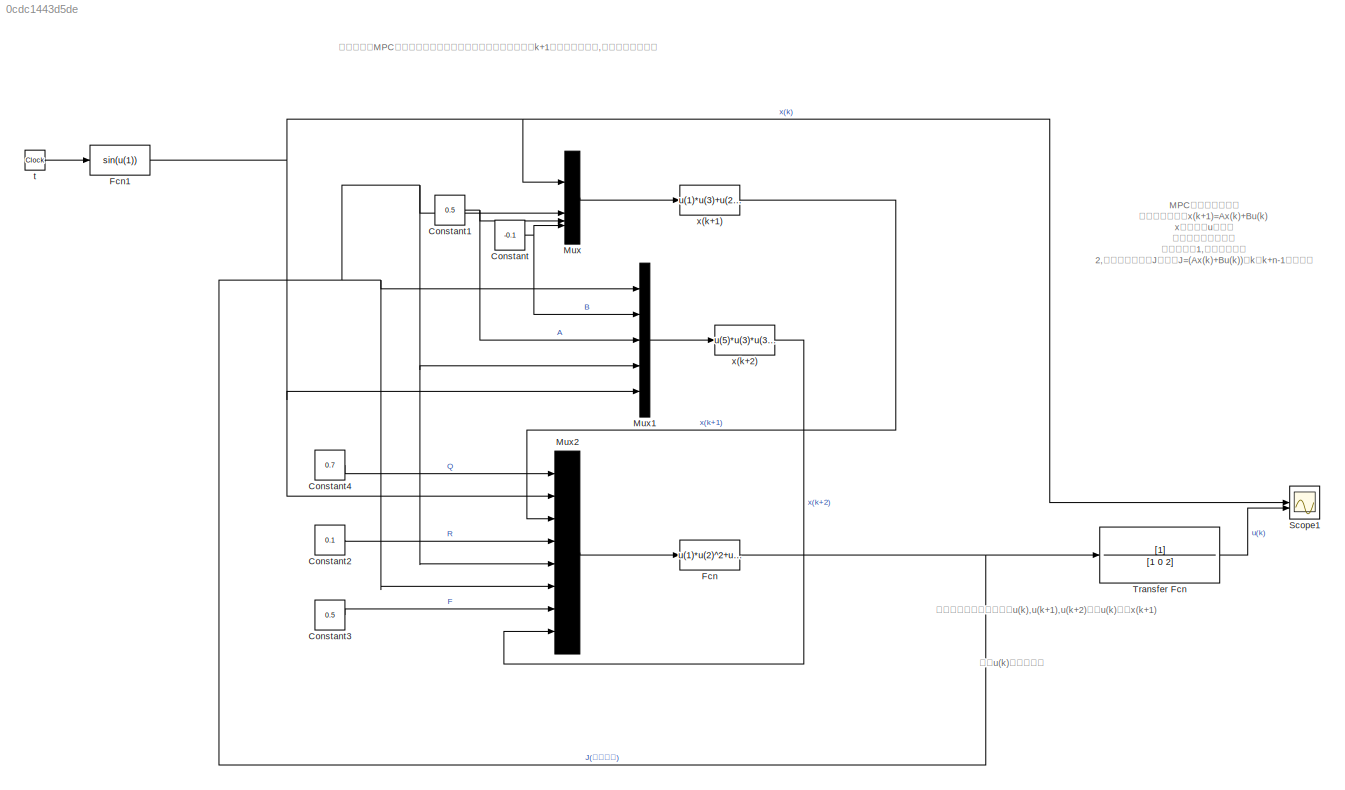
MODEL slx_0cdc1443d5de
KIND model
CONFIG AbsTol = auto
CONFIG EnableMultiTasking = off
CONFIG FixedStep = auto
CONFIG MaxStep = auto
CONFIG MinStep = auto
CONFIG RelTol = 1e-3
CONFIG SampleTimeConstraint = Unconstrained
CONFIG SolverName = VariableStepAuto
CONFIG StartTime = 0.0
CONFIG StopTime = 50
BLOCK [Constant] Constant
  Value = -0.1
BLOCK [Constant] Constant1
  Value = 0.5
BLOCK [Constant] Constant2
  Value = 0.1
BLOCK [Constant] Constant3
  Value = 0.5
BLOCK [Constant] Constant4
  Value = 0.7
BLOCK [Fcn] Fcn
  Expr = u(1)*u(2)^2+u(1)*u(3)^2+u(4)*u(5)^2+u(4)*u(6)^2+u(7)*u(8)^2
BLOCK [Fcn] Fcn1
  Expr = sin(u(1))
BLOCK [Mux] Mux
  DisplayOption = bar
BLOCK [Mux] Mux1
  DisplayOption = bar
  Inputs = 5
BLOCK [Mux] Mux2
  DisplayOption = bar
  Inputs = 8
BLOCK [Scope] Scope1
  Floating = off
  NumInputPorts = 2
  ScopeSpecificationString = Simulink.scopes.TimeScopeBlockCfg('CurrentConfiguration', extmgr.ConfigurationSet(extmgr.Configuration('Core','General UI',true),extmgr.Configuration('Core','Source UI',true),extmgr.Configuration('Sources','WiredSimulink',true,'DataLoggingVariableName','ScopeData1'),extmgr.Configuration('Visuals','Time Domain',true,'SerializedDisplays',{struct('MinYLimReal','-1.28663','MaxYLimReal','1.57998','YLab...<+1496ch>
BLOCK [TransferFcn] Transfer Fcn
  Denominator = [1 0 2]
BLOCK [Clock] t
BLOCK [Fcn] x(k+1)
  Expr = u(1)*u(3)+u(2)*u(4)
BLOCK [Fcn] x(k+2)
  Expr = u(5)*u(3)*u(3)+u(2)*u(3)*u(4)+u(2)*u(1)
ANNOTATION (root): MPC：模型预测控制 单输入离散型：x(k+1)=Ax(k)+Bu(k) x是状态，u是控制 多输入使用矩阵运算 一般过程：1,读取当前状态 2,最优化代价函数J，其中J=(Ax(k)+Bu(k))从k到k+n-1的求和。 3，只取u(k)输出控制 这个循环就是滚动优化控制
ANNOTATION (root): 废稿，利用MPC预测单输入单输出未来两步状态的模型，在向k+1的迭代处不会写,参数是随便设置的
ANNOTATION (root): 这里应当是使用函数求得u(k),u(k+1),u(k+2)并用u(k)更新x(k+1)
ANNOTATION (root): 执行u(k)要怎么写？
NET Constant1:1 -> Mux1:3, Mux:3
LINE Constant2:1 -> Mux2:4
LINE Constant3:1 -> Mux2:7
LINE Constant4:1 -> Mux2:1
NET Constant:1 -> Mux1:2, Mux:4
NET Fcn1:1 -> Mux1:5, Mux2:2, Mux:1, Scope1:1
NET Fcn:1 -> Mux1:1, Mux1:4, Mux2:5, Mux2:6, Mux:2, Transfer Fcn:1
LINE Mux1:1 -> x(k+2):1
LINE Mux2:1 -> Fcn:1
LINE Mux:1 -> x(k+1):1
LINE Transfer Fcn:1 -> Scope1:2
LINE t:1 -> Fcn1:1
LINE x(k+1):1 -> Mux2:3
LINE x(k+2):1 -> Mux2:8
note: NET lines group one-source signal fan-out (src -> all destinations, sorted); 1:1 wires keep LINE
